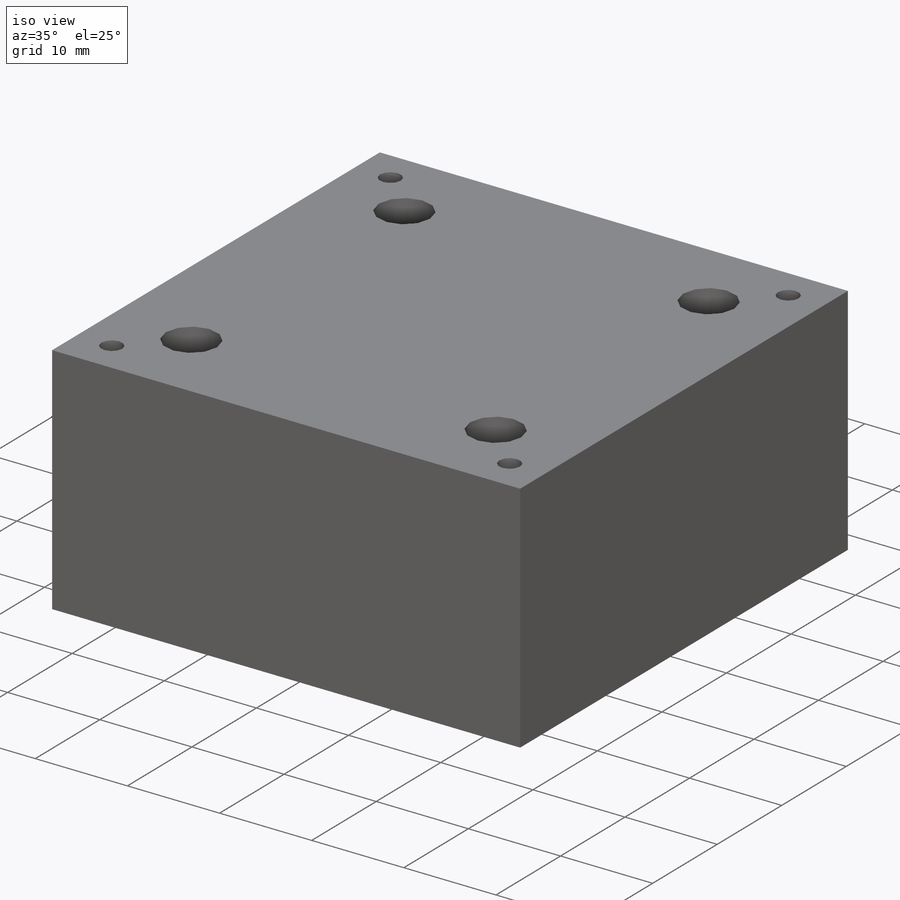
[diagram: iso view]
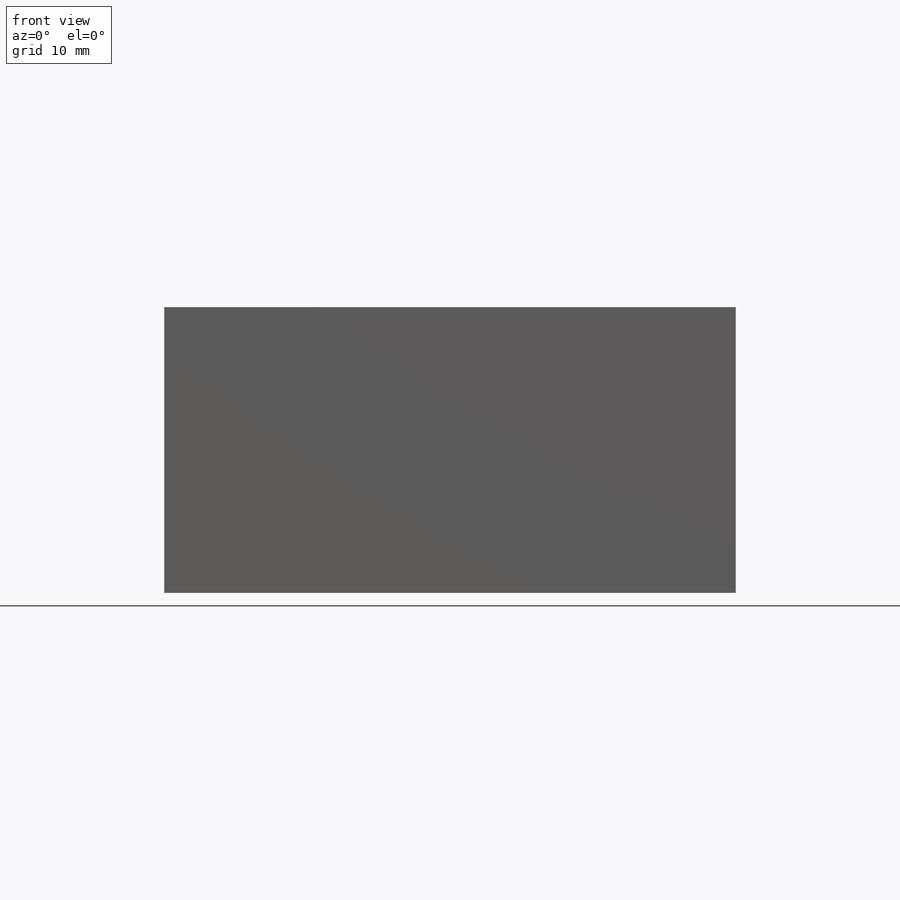
[diagram: front view]
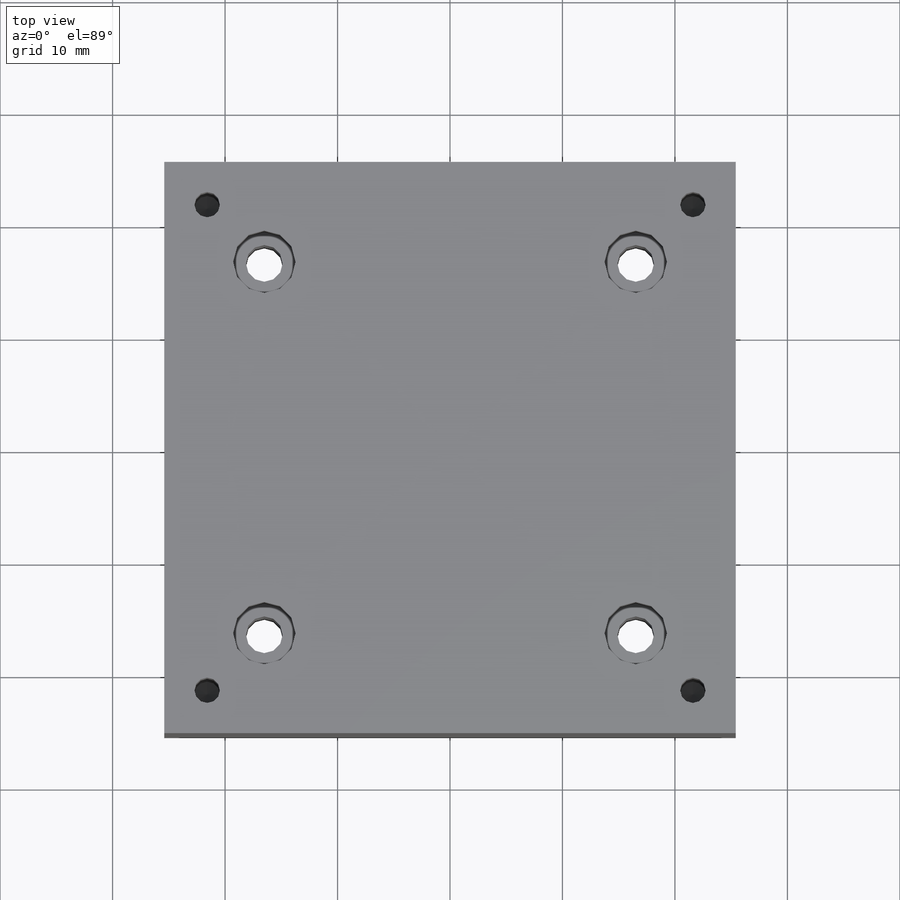
[diagram: top view]
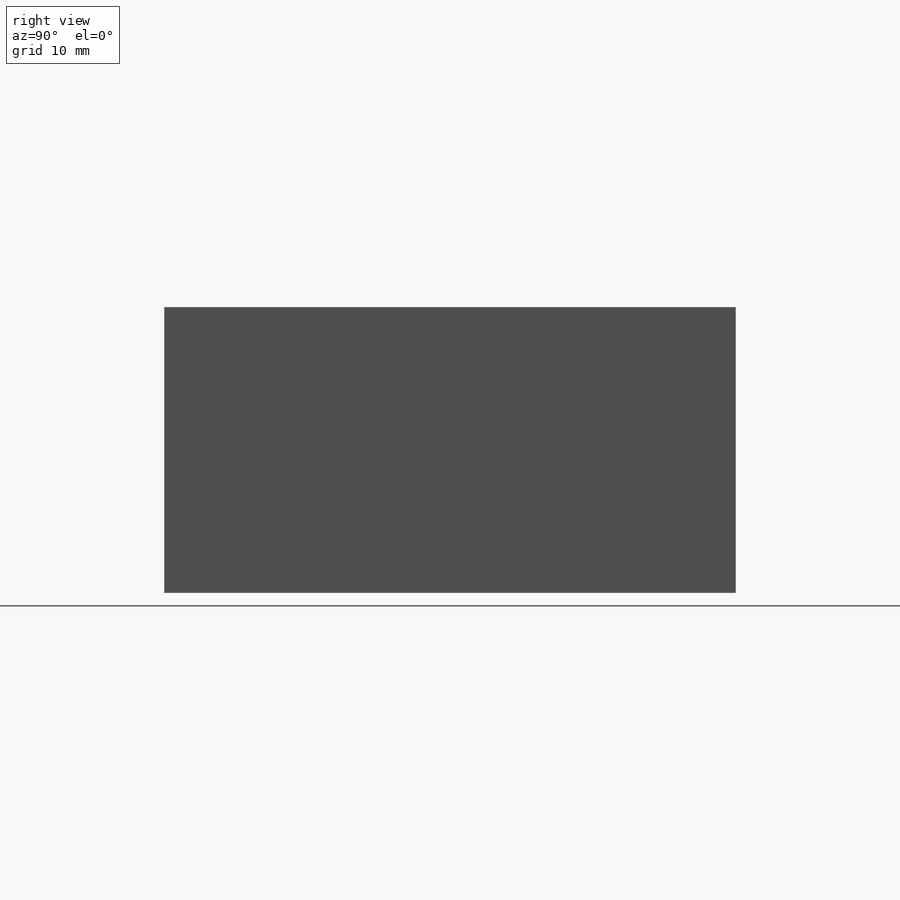
[diagram: right view]
SOLIDWORKS PART (.sldprt)
format: sldprt  version: not decoded by parser v0  size: 215,552 bytes
history: native  units: mm
features: sketch x5, hole x2, material x1, extrude x1 + 1 further entry (+10 scaffold rows collapsed)
feature tree (20):
  scaffold x10  (default folders/planes/origin — collapsed)
  material  "Delrin 2700 NC010, Low Viscosity Acetal Copolymer (SS)"
  "Origin"  ID=392984584
  sketch  "Sketch1"  dims[D1=50.8mm D2=50.8mm]
  extrude  "Boss-Extrude1"  Depth=25.4mm
  hole  "#4-40 Tapped Hole1"  Diameter=2.2606mm Depth=20.2946mm
  sketch  "Sketch3"  dims[D1=43.18mm D2=43.18mm D3=21.59mm D4=21.59mm]
  sketch  "Sketch2"  dims[hole-wizard template sketch: 47 standard entries collapsed; hole parameters kept: c15.Tap Drill Depth=20.2946mm c15.D3=~14.816244mm c15.Drill Angle=118.0deg]
  hole  "CBORE for #4 Socket Head Cap Screw1"  Diameter=3.2639mm Depth=25.4mm
  sketch  "Sketch5"  dims[D1=33.02mm D2=33.02mm D3=16.51mm D4=16.51mm]
  sketch  "Sketch4"  dims[hole-wizard template sketch: 42 standard entries collapsed; hole parameters kept: c12.Thru Hole Depth=25.4mm c12.C'Bore Dia.=~5.55752mm c12.C'Bore Depth=7.9248mm]
decode coverage: 8 of 8 modeling features carry decoded parameters; 1 rows unclassified (native names shown)
note: ~ marks probable driven/reference dimensions
note: suppression state not decoded; provenance and decode notes live in map.json
